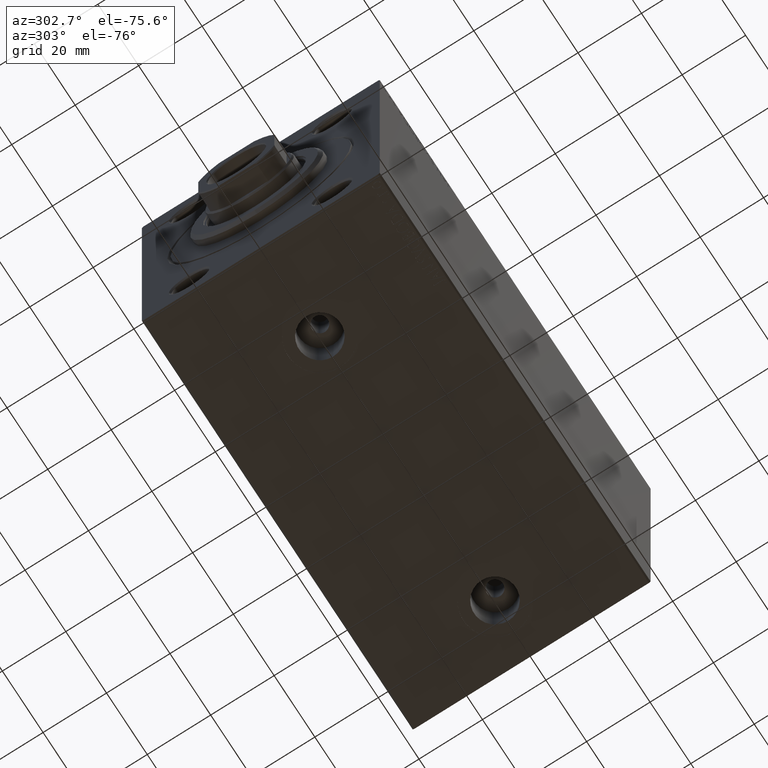
[diagram: clean part render]
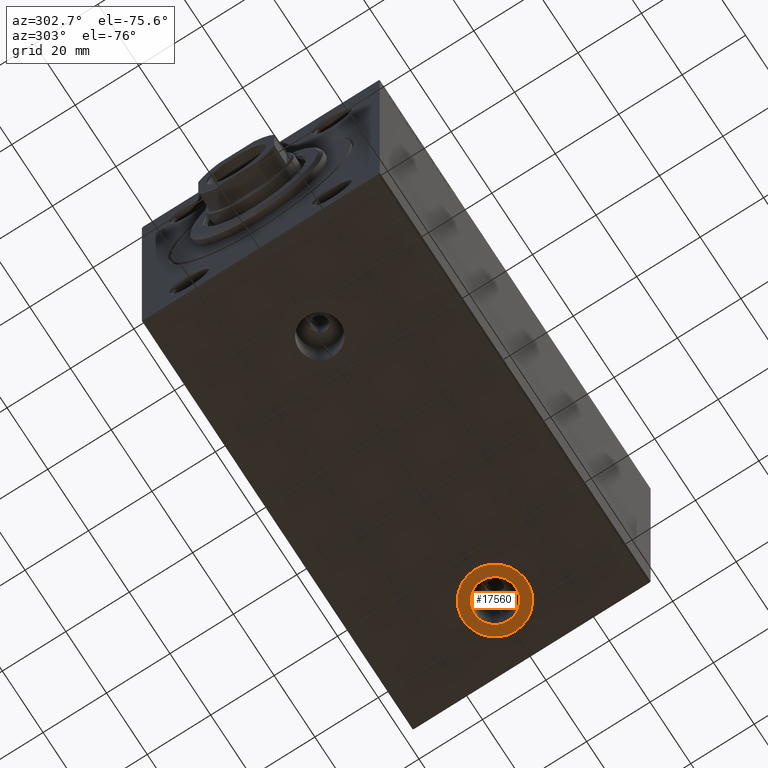
[diagram: same view with one face highlighted and labeled with its STEP entity id]
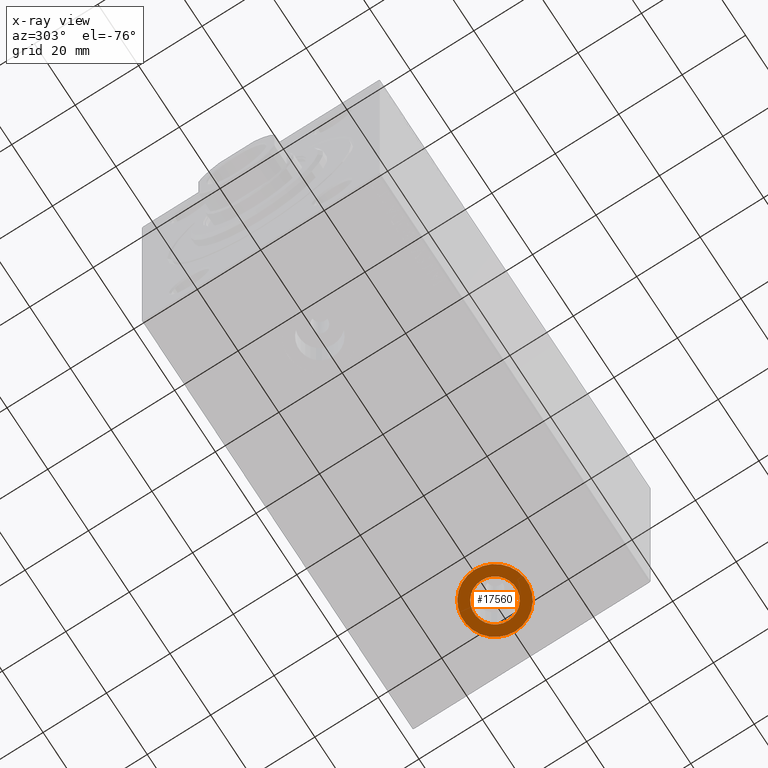
[diagram: x-ray of the same camera — body ghosted, the highlighted face saturated]
A machine part, auxiliary view. The second image highlights one B-rep face of the part: STEP entity #17560.
The next image is the same camera in x-ray: the body ghosted, the highlighted face saturated — about 0% of this face is hidden behind the body in this view.
In plain terms, the highlighted planar face has unit normal (0, 0, -1).
Its self-contained STEP definition (entity closure, byte-faithful):
#386 = AXIS2_PLACEMENT_3D ( 'NONE', #11501, #25607, #42938 ) ;
#1916 = VERTEX_POINT ( 'NONE', #5076 ) ;
#2490 = CIRCLE ( 'NONE', #43828, 6.580000000000002736 ) ;
#2650 = FACE_OUTER_BOUND ( 'NONE', #44965, .T. ) ;
#2787 = EDGE_CURVE ( 'NONE', #1916, #38116, #30851, .T. ) ;
#3338 = DIRECTION ( 'NONE',  ( 0.000000000000000000, 0.000000000000000000, -1.000000000000000000 ) ) ;
#4295 = AXIS2_PLACEMENT_3D ( 'NONE', #11831, #15058, #43037 ) ;
#5076 = CARTESIAN_POINT ( 'NONE',  ( 125.0000000000000000, -1.150285031403717661E-14, -49.89999999999999858 ) ) ;
#7687 = CARTESIAN_POINT ( 'NONE',  ( 121.5800000000000125, -1.192167951934556905E-14, -49.89999999999999858 ) ) ;
#10916 = AXIS2_PLACEMENT_3D ( 'NONE', #40877, #26338, #33964 ) ;
#11501 = CARTESIAN_POINT ( 'NONE',  ( 115.0000000000000000, -1.272749711318452810E-14, -49.89999999999999858 ) ) ;
#11831 = CARTESIAN_POINT ( 'NONE',  ( 115.0000000000000000, -1.272749711318452810E-14, -49.89999999999999858 ) ) ;
#13719 = PLANE ( 'NONE',  #26122 ) ;
#15058 = DIRECTION ( 'NONE',  ( 0.000000000000000000, 0.000000000000000000, -1.000000000000000000 ) ) ;
#15342 = ORIENTED_EDGE ( 'NONE', *, *, #2787, .T. ) ;
#16289 = CARTESIAN_POINT ( 'NONE',  ( 115.0000000000000000, -1.272749711318452810E-14, -49.89999999999999858 ) ) ;
#16509 = DIRECTION ( 'NONE',  ( -1.000000000000000000, 0.000000000000000000, 0.000000000000000000 ) ) ;
#16704 = CARTESIAN_POINT ( 'NONE',  ( 105.0000000000000142, -1.272749711318452810E-14, -49.89999999999999858 ) ) ;
#17403 = EDGE_CURVE ( 'NONE', #24893, #23466, #2490, .T. ) ;
#17415 = DIRECTION ( 'NONE',  ( -1.000000000000000000, 0.000000000000000000, -0.000000000000000000 ) ) ;
#17560 = ADVANCED_FACE ( 'NONE', ( #20425, #2650 ), #13719, .T. ) ;
#20425 = FACE_BOUND ( 'NONE', #35171, .T. ) ;
#22736 = CIRCLE ( 'NONE', #4295, 6.580000000000002736 ) ;
#23466 = VERTEX_POINT ( 'NONE', #34203 ) ;
#24893 = VERTEX_POINT ( 'NONE', #7687 ) ;
#25399 = EDGE_CURVE ( 'NONE', #38116, #1916, #40220, .T. ) ;
#25607 = DIRECTION ( 'NONE',  ( 0.000000000000000000, 0.000000000000000000, -1.000000000000000000 ) ) ;
#26122 = AXIS2_PLACEMENT_3D ( 'NONE', #27839, #3338, #17415 ) ;
#26338 = DIRECTION ( 'NONE',  ( 0.000000000000000000, 0.000000000000000000, -1.000000000000000000 ) ) ;
#27839 = CARTESIAN_POINT ( 'NONE',  ( 115.0000000000000000, -1.272749711318452810E-14, -49.89999999999999858 ) ) ;
#29235 = ORIENTED_EDGE ( 'NONE', *, *, #17403, .F. ) ;
#30851 = CIRCLE ( 'NONE', #10916, 9.999999999999994671 ) ;
#33964 = DIRECTION ( 'NONE',  ( -1.000000000000000000, 0.000000000000000000, 0.000000000000000000 ) ) ;
#34203 = CARTESIAN_POINT ( 'NONE',  ( 108.4200000000000017, -1.272749711318452810E-14, -49.89999999999999858 ) ) ;
#35171 = EDGE_LOOP ( 'NONE', ( #43690, #29235 ) ) ;
#38116 = VERTEX_POINT ( 'NONE', #16704 ) ;
#38210 = EDGE_CURVE ( 'NONE', #23466, #24893, #22736, .T. ) ;
#40220 = CIRCLE ( 'NONE', #386, 9.999999999999994671 ) ;
#40877 = CARTESIAN_POINT ( 'NONE',  ( 115.0000000000000000, -1.272749711318452810E-14, -49.89999999999999858 ) ) ;
#42938 = DIRECTION ( 'NONE',  ( -1.000000000000000000, 0.000000000000000000, 0.000000000000000000 ) ) ;
#43037 = DIRECTION ( 'NONE',  ( -1.000000000000000000, 0.000000000000000000, 0.000000000000000000 ) ) ;
#43690 = ORIENTED_EDGE ( 'NONE', *, *, #38210, .F. ) ;
#43805 = DIRECTION ( 'NONE',  ( 0.000000000000000000, 0.000000000000000000, -1.000000000000000000 ) ) ;
#43828 = AXIS2_PLACEMENT_3D ( 'NONE', #16289, #43805, #16509 ) ;
#44744 = ORIENTED_EDGE ( 'NONE', *, *, #25399, .T. ) ;
#44965 = EDGE_LOOP ( 'NONE', ( #44744, #15342 ) ) ;